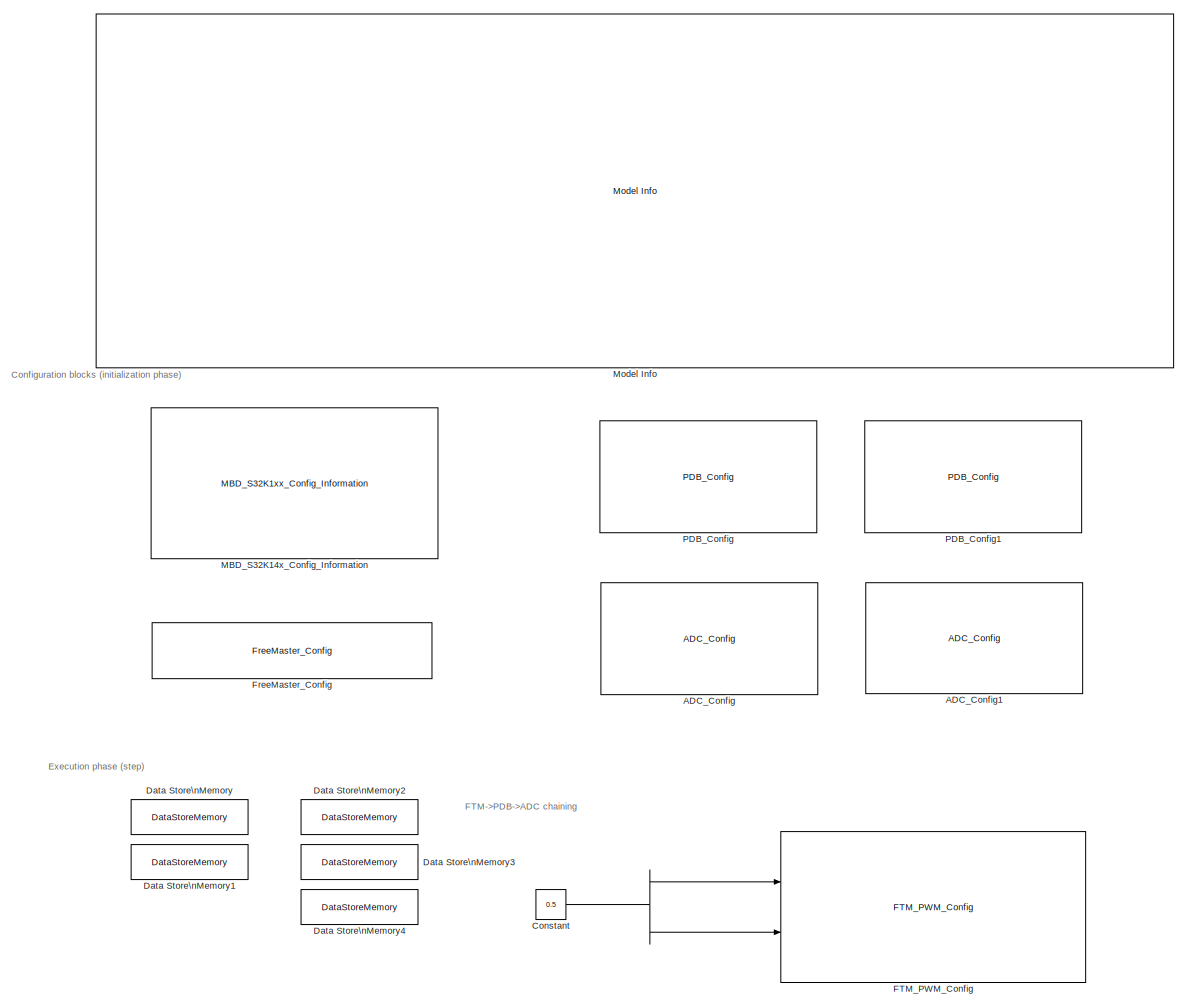
[diagram: root canvas - part 1/2, most of the canvas]
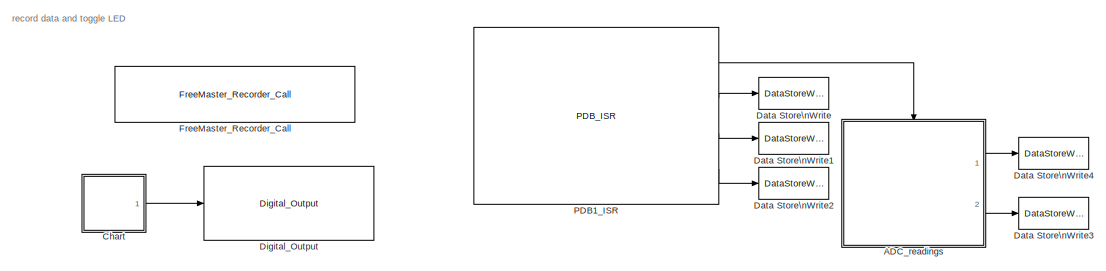
[diagram: root canvas - part 2/2, full width, bottom band]
MODEL ftm_pdb_adc_chaining_s32k14x
KIND model
CONFIG InitFcn = mbd_s32k_consistency_checks(bdroot(gcs));
BLOCK [Reference] ADC_Config  REF=mbd_s32k1xx_ec_toolbox/Motor Control Blocks/ADC Blocks/ADC_Config
  Ports = []
  Priority = 3
  SID = 2
  SourceBlock = mbd_s32k1xx_ec_toolbox/Motor Control Blocks/ADC Blocks/ADC_Config
  SourceType = adc_s32k_config_block
  acfe = off
  acfgt = off
  acren = off
  adco = off
  adiclk = alternate clock 1
  adiv = input clock
  adtrg = hardware
  avge = off
  avgs = 4 samples
  cv1 = 0
  cv2 = 0
  instance = 0
  mode = 12-bit conversion
  pretrgsel = PDB pre-trigger
  refsel = Vrefh and Vrefl
  show_adv_opts = on
  smplts = 13
  supply_monitoring = on
  swpretrg = Disabled
  trgsel = PDB output
BLOCK [Reference] ADC_Config1  REF=mbd_s32k1xx_ec_toolbox/Motor Control Blocks/ADC Blocks/ADC_Config
  Ports = []
  Priority = 4
  SID = 71
  SourceBlock = mbd_s32k1xx_ec_toolbox/Motor Control Blocks/ADC Blocks/ADC_Config
  SourceType = adc_s32k_config_block
  acfe = off
  acfgt = off
  acren = off
  adco = off
  adiclk = alternate clock 1
  adiv = input clock
  adtrg = hardware
  avge = off
  avgs = 4 samples
  cv1 = 0
  cv2 = 0
  instance = 1
  mode = 12-bit conversion
  pretrgsel = PDB pre-trigger
  refsel = Vrefh and Vrefl
  show_adv_opts = on
  smplts = 13
  supply_monitoring = off
  swpretrg = Disabled
  trgsel = PDB output
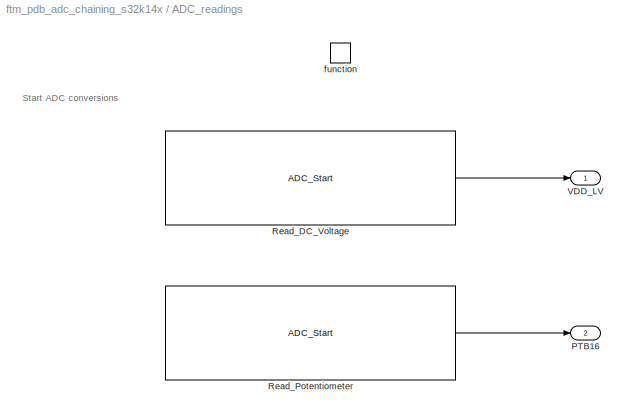
BLOCK [SubSystem] ADC_readings
  Ports = [0, 2, 0, 1]
  RTWSystemCode = Nonreusable function
  RequestExecContextInheritance = off
  SID = 51
  TreatAsAtomicUnit = on
  Variant = off
BLOCK [Outport] ADC_readings/PTB16
  IconDisplay = Port number
  Port = 2
  SID = 81
BLOCK [Reference] ADC_readings/Read_DC_Voltage  REF=mbd_s32k1xx_ec_toolbox/Motor Control Blocks/ADC Blocks/ADC_Start
  Ports = [0, 1]
  SID = 54
  SourceBlock = mbd_s32k1xx_ec_toolbox/Motor Control Blocks/ADC Blocks/ADC_Start
  SourceType = adc_s32k_start_block
  adc_chan = VDD LV
  adc_r = A
  aien = off
  instance = 0
  mcuTargetUpdate = on
BLOCK [Reference] ADC_readings/Read_Potentiometer  REF=mbd_s32k1xx_ec_toolbox/Motor Control Blocks/ADC Blocks/ADC_Start
  Ports = [0, 1]
  SID = 73
  SourceBlock = mbd_s32k1xx_ec_toolbox/Motor Control Blocks/ADC Blocks/ADC_Start
  SourceType = adc_s32k_start_block
  adc_chan = PTB16: [ADC1_SE15 | ADC Single Ended Input]
  adc_r = A
  aien = off
  instance = 1
  mcuTargetUpdate = on
BLOCK [Outport] ADC_readings/VDD_LV
  IconDisplay = Port number
  SID = 55
BLOCK [TriggerPort] ADC_readings/function
  Ports = []
  SID = 52
  StatesWhenEnabling = held
  TriggerType = function-call
  VariantControl = Variant
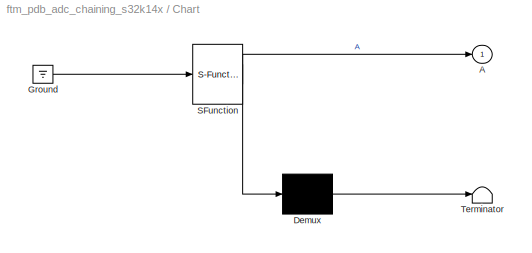
BLOCK [SubSystem] Chart
  ErrorFcn = Stateflow.Translate.translate
  PermitHierarchicalResolution = ExplicitOnly
  Ports = [0, 1]
  RequestExecContextInheritance = off
  SFBlockType = Chart
  SID = 12
  TreatAsAtomicUnit = on
  Variant = off
BLOCK [Outport] Chart/ A
  IconDisplay = Port number
  SID = 12::6
BLOCK [Demux] Chart/ Demux 
  Outputs = 1
  Ports = [1, 1]
  SID = 12::36
BLOCK [Ground] Chart/ Ground 
  SID = 12::38
BLOCK [S-Function] Chart/ SFunction 
  EnableBusSupport = off
  FunctionName = sf_sfun
  PortCounts = [1 2]
  Ports = [1, 2]
  SFcnIsStateOwnerBlock = off
  SFunctionDeploymentMode = off
  SID = 12::35
  Tag = Stateflow S-Function ftm_pdb_adc_chaining_s32k14x 3
BLOCK [Terminator] Chart/ Terminator 
  SID = 12::37
BLOCK [Constant] Constant
  OutDataTypeStr = Inherit: Inherit via back propagation
  SID = 49
  Value = 0.5
BLOCK [DataStoreMemory] Data Store\nMemory
  DataStoreName = PTB16
  OutDataTypeStr = uint32
  ReadBeforeWriteMsg = warning
  SID = 108
  ShowAdditionalParam = off
  WriteAfterReadMsg = warning
  WriteAfterWriteMsg = warning
BLOCK [DataStoreMemory] Data Store\nMemory1
  DataStoreName = VDD_LV
  OutDataTypeStr = uint32
  ReadBeforeWriteMsg = warning
  SID = 109
  ShowAdditionalParam = off
  WriteAfterReadMsg = warning
  WriteAfterWriteMsg = warning
BLOCK [DataStoreMemory] Data Store\nMemory2
  DataStoreName = PDBIF
  OutDataTypeStr = uint32
  ReadBeforeWriteMsg = warning
  SID = 110
  ShowAdditionalParam = off
  WriteAfterReadMsg = warning
  WriteAfterWriteMsg = warning
BLOCK [DataStoreMemory] Data Store\nMemory3
  DataStoreName = ERRCH0
  OutDataTypeStr = uint32
  ReadBeforeWriteMsg = warning
  SID = 111
  ShowAdditionalParam = off
  WriteAfterReadMsg = warning
  WriteAfterWriteMsg = warning
BLOCK [DataStoreMemory] Data Store\nMemory4
  DataStoreName = ERRCH1
  OutDataTypeStr = uint32
  ReadBeforeWriteMsg = warning
  SID = 112
  ShowAdditionalParam = off
  WriteAfterReadMsg = warning
  WriteAfterWriteMsg = warning
BLOCK [DataStoreWrite] Data Store\nWrite
  DataStoreName = PDBIF
  Ports = [1]
  SID = 113
BLOCK [DataStoreWrite] Data Store\nWrite1
  DataStoreName = ERRCH0
  Ports = [1]
  SID = 114
BLOCK [DataStoreWrite] Data Store\nWrite2
  DataStoreName = ERRCH1
  Ports = [1]
  SID = 115
BLOCK [DataStoreWrite] Data Store\nWrite3
  DataStoreName = PTB16
  Ports = [1]
  SID = 116
BLOCK [DataStoreWrite] Data Store\nWrite4
  DataStoreName = VDD_LV
  Ports = [1]
  SID = 117
BLOCK [Reference] Digital_Output  REF=mbd_s32k1xx_ec_toolbox/GPIO Blocks/Digital_Output
  Ports = [1]
  SID = 13
  SourceBlock = mbd_s32k1xx_ec_toolbox/GPIO Blocks/Digital_Output
  SourceType = gpio_s32k_output
  drive_strength = Low
  gpio_pin = PTD0: [PTD0 | Port D I/O]
  init_val = Low
BLOCK [Reference] FTM_PWM_Config  REF=mbd_s32k1xx_ec_toolbox/Motor Control Blocks/FTM Blocks/FTM_PWM_Config
  Ports = [2]
  SID = 118
  SourceBlock = mbd_s32k1xx_ec_toolbox/Motor Control Blocks/FTM Blocks/FTM_PWM_Config
  SourceType = FTM_s32k_pwm_config_block
  chTrigger0 = off
  chTrigger1 = off
  chTrigger2 = off
  chTrigger3 = off
  chTrigger4 = off
  chTrigger5 = off
  chTrigger6 = off
  chTrigger7 = off
  chan0En = on
  chan0Type = Independent
  chan2En = off
  chan2Type = Independent
  chan4En = off
  chan4Type = Independent
  chan6En = off
  chan6Type = Independent
  chnMatch0 = off
  chnMatch1 = off
  chnMatch2 = off
  chnMatch3 = off
  chnMatch4 = off
  chnMatch5 = off
  chnMatch6 = off
  chnMatch7 = off
  deadtimeNs = 0
  deadtimePrescaler = Divide by 1
  deadtimeTicks = 0
  deadtimeUnits = Nanoseconds
  dutyCycleCh0 = 0.5
  dutyCycleCh1 = 0.5
  dutyCycleCh2 = 0.25
  dutyCycleCh3 = 0.25
  dutyCycleCh4 = 0.25
  dutyCycleCh5 = 0.25
  dutyCycleCh6 = 0.25
  dutyCycleCh7 = 0.25
  dutyCycleSim = off
  fault_disen_0 = off
  fault_disen_1 = off
  fault_disen_2 = off
  fault_disen_3 = off
  fault_filter_0 = off
  fault_filter_1 = off
  fault_filter_2 = off
  fault_filter_3 = off
  fault_pin_0 = None
  fault_pin_1 = None
  fault_pin_2 = None
  fault_pin_3 = None
  fault_polarity_0 = Active High
  fault_polarity_1 = Active high
  fault_polarity_2 = Active high
  fault_polarity_3 = Active high
  ftmMode = Center-Aligned PWM
  ftmModule = 3
  ftmPeriod = 8000
  ftmPrescaler = Divide by 1
  ftmPwmUnits = Hz
  ftmSourceClock = 80 MHz
  initTrigger = on
  mcuTargetUpdate = on
  outFrequency = 10000
  outputComplem0 = Main duplicated
  outputComplem2 = Main duplicated
  outputComplem4 = Main duplicated
  outputComplem6 = Main duplicated
  outputLevel0 = Low
  outputLevel1 = Low
  outputLevel2 = Low
  outputLevel3 = Low
  outputLevel4 = Low
  outputLevel5 = Low
  outputLevel6 = Low
  outputLevel7 = Low
  pinFtmCh0 = PTA2: [FTM3_CH0 | FTM Channel]
  pinFtmCh1 = PTA3: [FTM3_CH1 | FTM Channel]
  pinFtmCh2 = PTB10: [FTM3_CH2 | FTM Channel]
  pinFtmCh3 = None
  pinFtmCh4 = PTC10: [FTM3_CH4 | FTM Channel]
  pinFtmCh5 = None
  pinFtmCh6 = PTC12: [FTM3_CH6 | FTM Channel]
  pinFtmCh7 = None
  pinPolCh0 = Active High
  pinPolCh1 = Active Low
  pinPolCh2 = Active Low
  pinPolCh3 = Active Low
  pinPolCh4 = Active Low
  pinPolCh5 = Active Low
  pinPolCh6 = Active Low
  pinPolCh7 = Active Low
  pwmFaultClearing = Fault control disabled
  pwmFaultFilterValue = 0
  pwmFaultInterrupt = off
  pwmFaultPinState = Safe Value
  pwmFaultPriority = 15
  pwmFaultProtection = off
  pwmSyncAutoClear = on
  pwmSyncCounterInitial = System Clock
  pwmSyncHwRouting = TRGMUX_FTM7
  pwmSyncInvert = System Clock
  pwmSyncMaxLoad = on
  pwmSyncMinLoad = on
  pwmSyncOutControl = System Clock
  pwmSyncOutMask = System Clock
  pwmSyncPoints = Update now
  pwmSyncTrg = Software trigger
  pwmSyncTrg0 = off
  pwmSyncTrg1 = off
  pwmSyncTrg2 = off
  reloadEnable = off
  reloadFrequency = 0
  reloadHCR = 0
  reloadHalfCycle = off
  reloadPriority = 15
  showAdvOpt = on
  startAfterInit = on
  swcontrol_enable = off
BLOCK [Reference] FreeMaster_Config  REF=mbd_s32k1xx_ec_toolbox/Utility Blocks/FreeMaster_Config
  Ports = []
  SID = 43
  SourceBlock = mbd_s32k1xx_ec_toolbox/Utility Blocks/FreeMaster_Config
  SourceType = fm_s32k_config
  baudrate = 115200
  comm_buffer_size = 255
  comm_buffer_size_auto = on
  comm_rqueue_size = 32
  comm_rqueue_size_default = on
  interface = LPUART1
  isr_prio = 10
  max_rec_vars = 8
  max_scope_vars = 8
  mode = Short Interrupt
  rec_buff_size = 1024
  rec_timebase = 100
  rec_timebase_unit = milliseconds
  rxd = PTC6: [LPUART1_RX | Receive]
  show_adv_opts = on
  txd = PTC7: [LPUART1_TX | Transmit]
  use_recorder = on
  use_scope = on
BLOCK [Reference] FreeMaster_Recorder_Call  REF=mbd_s32k1xx_ec_toolbox/Utility Blocks/FreeMaster_Recorder_Call
  Ports = []
  SID = 119
  SourceBlock = mbd_s32k1xx_ec_toolbox/Utility Blocks/FreeMaster_Recorder_Call
  SourceType = fm_s32k_recorder_call
BLOCK [Reference] MBD_S32K14x_Config_Information  REF=mbd_s32k1xx_ec_toolbox/MBD_S32K1xx_Config_Information
  ADC_PcrCheckEnDis = on
  AMMCLIB_PcrCheckEnDis = on
  CMP_PcrCheckEnDis = on
  CSEc_PcrCheckEnDis = on
  ConfigParams_PcrCheckEnDis = on
  FM_PcrCheckEnDis = on
  FTM_Dual_Edge_Inputs_PcrCheckEnDis = on
  FTM_Hall_Sensor_Inputs_PcrCheckEnDis = on
  FTM_Input_Edge_Inputs_PcrCheckEnDis = on
  FTM_PWM_PcrCheckEnDis = on
  FTM_Quadrature_Inputs_PcrCheckEnDis = on
  FlexCAN_PcrCheckEnDis = on
  FlexIO_PcrCheckEnDis = on
  GPIO_InputPcrCheckEnDis = on
  GPIO_OutputPcrCheckEnDis = on
  LIN_PcrCheckEnDis = on
  LPI2C_PcrCheckEnDis = on
  LPSPI_PcrCheckEnDis = on
  LPTMR_PcrCheckEnDis = on
  LPUART_PcrCheckEnDis = on
  ModelRef_PcrCheckEnDis = on
  PDB0_PcrCheckEnDis = on
  PIT_PcrCheckEnDis = on
  Ports = []
  Priority = 0
  Profile_PcrCheckEnDis = on
  RTC_PcrCheckEnDis = on
  SBC_PcrCheckEnDis = on
  SID = 1
  SourceBlock = mbd_s32k1xx_ec_toolbox/MBD_S32K1xx_Config_Information
  SourceType = MBDTBX_EC_S32K
  WDOG_PcrCheckEnDis = on
  config_params = []
  disp_str = Target : S32K144-64KB_SRAM\nPackage : 100-pin\nSystem clock : 80 MHz\nXTAL clock : External 8 MHz\nCompiler : GCC\nTarget Type : FLASH\nDownload Code after build : (OpenSDA: D)\nStep Tick Interrupt Priority : 15
  ds_import_enable = on
  eDMA_PcrCheckEnDis = on
  gcc_target_assemble_opts = -mcpu=cortex-m4 -mthumb -mfloat-abi=hard -mfpu=fpv4-sp-d16 -g
  gcc_target_compile_opts = -mcpu=cortex-m4 -mthumb -mfloat-abi=hard -mfpu=fpv4-sp-d16 -O1 -g -gstrict-dwarf
  gcc_target_default_lcf = on
  gcc_target_link_opts = -mcpu=cortex-m4 -mthumb -mfloat-abi=hard -mfpu=fpv4-sp-d16
  gcc_target_user_lcf = S32K144_64_flash.ld
  ghs_target_assemble_opts = -cpu=cortexm4f -fpu=vfpv4_d16
  ghs_target_compile_opts = -cpu=cortexm4f -thumb -DARM_MATH_CM4 -fpu=vfpv4_d16 -fsingle -Ogeneral -Wundef -Wimplicit-int -Wshadow -Wtrigraphs --no_commons --gnu_asm -gnu99 -gdwarf-2 -G
  ghs_target_default_lcf = off
  ghs_target_link_opts = -cpu=cortexm4f -thumb -fpu=vfpv4_d16
  ghs_target_user_lcf = S32K144_64_flash.ld
  iar_target_assemble_opts = --cpu Cortex-M4F --thumb --fpu VFPv4_sp
  iar_target_compile_opts = --cpu=Cortex-M4F --thumb --fpu=VFPv4_sp -Ol -e --debug --dlib_config normal
  iar_target_default_lcf = off
  iar_target_link_opts = --no_exceptions --vfe --inline
  iar_target_user_lcf = S32K144_64_flash.icf
  mbdt_ver = 0
  mcu_steptick_prio = 15
  mcu_steptick_timer = LPIT Channel 0
  mcu_system_clock_freq = 80
  mcu_target_name = S32K144
  mcu_target_package = 100-LQFP
  mcu_target_sram_size = 64KB
  mcu_xtal_freq = External 8
  pil_download_enable = off
  pil_download_rate = 57600
  pil_opensda_drive = Custom
  pil_opensda_drive_custom = D
  pil_uart_instance = 0
  pil_uart_rx = PTA2: [LPUART0_RX | Receive]
  pil_uart_tx = PTA3: [LPUART0_TX | Transmit]
  rbl_com_port = Custom
  rbl_com_port_custom = COM1
  rbl_download_enable = on
  rbl_download_interface = OpenSDA
  rbl_restart_request = off
  rbl_start_delay = 5000000
  target_compiler = GCC
  target_memory = FLASH
BLOCK [Reference] Model Info  REF=simulink/Model-Wide\nUtilities/Model Info
  DisplayStringWithTags = Model Name: %<ModelName>\n\nDescription: %<Description>
  Frame = on
  HorizontalTextAlignment = Left
  LeftAlignmentValue = 0.02
  MaskDisplayString = Model Name: ftm_pdb_adc_chaining_s32k14x\\n\\nDescription: FTM->PDB->ADC chaining:\\n\\nThis example shows how to synchronize ADC0 and ADC1 measurements with the PWM commands issued by FTM via Programmable Delay Block (PDB0 and PDB1).\\n\\nThe FTM->PDB0/1->ADC0/1 chain works like this:\\nThe INIT_TRIG event (FTM initialization trigger) is raised at the beginning of a new PWM period (when the PWM c...<+902ch>
  Ports = []
  SID = 106
  SourceBlock = simulink/Model-Wide\nUtilities/Model Info
  SourceProductBaseCode = SL
  SourceProductName = Simulink
  SourceType = CMBlock
BLOCK [Reference] PDB1_ISR  REF=mbd_s32k1xx_ec_toolbox/Motor Control Blocks/PDB Blocks/PDB_ISR
  Ports = [0, 4]
  Priority = 8
  SID = 88
  SourceBlock = mbd_s32k1xx_ec_toolbox/Motor Control Blocks/PDB Blocks/PDB_ISR
  SourceType = pdb_s32k_isr_block
  pdbModule = 1
  prioInterrupt = 1
  regIdlyIdly = 0
  regScPdbeie = on
  regScPdbie = on
BLOCK [Reference] PDB_Config  REF=mbd_s32k1xx_ec_toolbox/Motor Control Blocks/PDB Blocks/PDB_Config
  Ports = []
  Priority = 1
  SID = 62
  SourceBlock = mbd_s32k1xx_ec_toolbox/Motor Control Blocks/PDB Blocks/PDB_Config
  SourceType = pdb_s32k_config_block
  enable_pdb_init = on
  pdbModule = 0
  regCh0C1Bb0 = off
  regCh0C1Bb1 = off
  regCh0C1Bb2 = off
  regCh0C1Bb3 = off
  regCh0C1Bb4 = off
  regCh0C1Bb5 = off
  regCh0C1Bb6 = off
  regCh0C1Bb7 = off
  regCh0C1En0 = on
  regCh0C1En1 = off
  regCh0C1En2 = off
  regCh0C1En3 = off
  regCh0C1En4 = off
  regCh0C1En5 = off
  regCh0C1En6 = off
  regCh0C1En7 = off
  regCh0C1Tos0 = Pre-trigger is in delay mode
  regCh0C1Tos1 = Pre-trigger is in delay mode
  regCh0C1Tos2 = Pre-trigger is in delay mode
  regCh0C1Tos3 = Pre-trigger is in delay mode
  regCh0C1Tos4 = Pre-trigger is in delay mode
  regCh0C1Tos5 = Pre-trigger is in delay mode
  regCh0C1Tos6 = Pre-trigger is in delay mode
  regCh0C1Tos7 = Pre-trigger is in delay mode
  regCh0DlyDly0 = 0
  regCh0DlyDly1 = 500
  regCh0DlyDly2 = 0
  regCh0DlyDly3 = 0
  regCh0DlyDly4 = 0
  regCh0DlyDly5 = 0
  regCh0DlyDly6 = 0
  regCh0DlyDly7 = 0
  regCh1C1Bb0 = off
  regCh1C1Bb1 = off
  regCh1C1Bb2 = off
  regCh1C1Bb3 = off
  regCh1C1Bb4 = off
  regCh1C1Bb5 = off
  regCh1C1Bb6 = off
  regCh1C1Bb7 = off
  regCh1C1En0 = off
  regCh1C1En1 = off
  regCh1C1En2 = off
  regCh1C1En3 = off
  regCh1C1En4 = off
  regCh1C1En5 = off
  regCh1C1En6 = off
  regCh1C1En7 = off
  regCh1C1Tos0 = Pre-trigger is in delay mode
  regCh1C1Tos1 = Pre-trigger is in delay mode
  regCh1C1Tos2 = Pre-trigger is in delay mode
  regCh1C1Tos3 = Pre-trigger is in delay mode
  regCh1C1Tos4 = Pre-trigger is in delay mode
  regCh1C1Tos5 = Pre-trigger is in delay mode
  regCh1C1Tos6 = Pre-trigger is in delay mode
  regCh1C1Tos7 = Pre-trigger is in delay mode
  regCh1DlyDly0 = 0
  regCh1DlyDly1 = 0
  regCh1DlyDly2 = 0
  regCh1DlyDly3 = 0
  regCh1DlyDly4 = 0
  regCh1DlyDly5 = 0
  regCh1DlyDly6 = 0
  regCh1DlyDly7 = 0
  regModModulus = 8000
  regPo0DlyDly1 = 0
  regPo0DlyDly2 = 0
  regPoenPoen0 = off
  regScCont = One-Shot
  regScMult = 1
  regScPrescaler = 1
  regScTrgsel = External (TRGMUX_PDB_TRIG)
  show_adv_opts = on
  trgMuxSel = FTM3 Initialize Trigger
  trgMuxSelPin = PTB5: [TRGMUX_IN0 | Trigger Mux Input]
BLOCK [Reference] PDB_Config1  REF=mbd_s32k1xx_ec_toolbox/Motor Control Blocks/PDB Blocks/PDB_Config
  Ports = []
  Priority = 2
  SID = 72
  SourceBlock = mbd_s32k1xx_ec_toolbox/Motor Control Blocks/PDB Blocks/PDB_Config
  SourceType = pdb_s32k_config_block
  enable_pdb_init = on
  pdbModule = 1
  regCh0C1Bb0 = off
  regCh0C1Bb1 = off
  regCh0C1Bb2 = off
  regCh0C1Bb3 = off
  regCh0C1Bb4 = off
  regCh0C1Bb5 = off
  regCh0C1Bb6 = off
  regCh0C1Bb7 = off
  regCh0C1En0 = on
  regCh0C1En1 = off
  regCh0C1En2 = off
  regCh0C1En3 = off
  regCh0C1En4 = off
  regCh0C1En5 = off
  regCh0C1En6 = off
  regCh0C1En7 = off
  regCh0C1Tos0 = Pre-trigger is in delay mode
  regCh0C1Tos1 = Pre-trigger is in delay mode
  regCh0C1Tos2 = Pre-trigger is in delay mode
  regCh0C1Tos3 = Pre-trigger is in delay mode
  regCh0C1Tos4 = Pre-trigger is in delay mode
  regCh0C1Tos5 = Pre-trigger is in delay mode
  regCh0C1Tos6 = Pre-trigger is in delay mode
  regCh0C1Tos7 = Pre-trigger is in delay mode
  regCh0DlyDly0 = 0
  regCh0DlyDly1 = 500
  regCh0DlyDly2 = 0
  regCh0DlyDly3 = 0
  regCh0DlyDly4 = 0
  regCh0DlyDly5 = 0
  regCh0DlyDly6 = 0
  regCh0DlyDly7 = 0
  regCh1C1Bb0 = off
  regCh1C1Bb1 = off
  regCh1C1Bb2 = off
  regCh1C1Bb3 = off
  regCh1C1Bb4 = off
  regCh1C1Bb5 = off
  regCh1C1Bb6 = off
  regCh1C1Bb7 = off
  regCh1C1En0 = off
  regCh1C1En1 = off
  regCh1C1En2 = off
  regCh1C1En3 = off
  regCh1C1En4 = off
  regCh1C1En5 = off
  regCh1C1En6 = off
  regCh1C1En7 = off
  regCh1C1Tos0 = Pre-trigger is in delay mode
  regCh1C1Tos1 = Pre-trigger is in delay mode
  regCh1C1Tos2 = Pre-trigger is in delay mode
  regCh1C1Tos3 = Pre-trigger is in delay mode
  regCh1C1Tos4 = Pre-trigger is in delay mode
  regCh1C1Tos5 = Pre-trigger is in delay mode
  regCh1C1Tos6 = Pre-trigger is in delay mode
  regCh1C1Tos7 = Pre-trigger is in delay mode
  regCh1DlyDly0 = 0
  regCh1DlyDly1 = 0
  regCh1DlyDly2 = 0
  regCh1DlyDly3 = 0
  regCh1DlyDly4 = 0
  regCh1DlyDly5 = 0
  regCh1DlyDly6 = 0
  regCh1DlyDly7 = 0
  regModModulus = 8000
  regPo0DlyDly1 = 0
  regPo0DlyDly2 = 0
  regPoenPoen0 = off
  regScCont = One-Shot
  regScMult = 1
  regScPrescaler = 1
  regScTrgsel = External (TRGMUX_PDB_TRIG)
  show_adv_opts = on
  trgMuxSel = FTM3 Initialize Trigger
  trgMuxSelPin = PTB5: [TRGMUX_IN0 | Trigger Mux Input]
ANNOTATION (root): Configuration blocks (initialization phase)
ANNOTATION (root): Execution phase (step)
ANNOTATION (root): FTM->PDB->ADC chaining
ANNOTATION (root): record data and toggle LED
ANNOTATION ADC_readings: Start ADC conversions
LINE ADC_readings/Read_DC_Voltage:1 -> ADC_readings/VDD_LV:1
LINE ADC_readings/Read_Potentiometer:1 -> ADC_readings/PTB16:1
LINE ADC_readings:1 -> Data Store\nWrite4:1
LINE ADC_readings:2 -> Data Store\nWrite3:1
LINE Chart/ Demux :1 -> Chart/ Terminator :1
LINE Chart/ Ground :1 -> Chart/ SFunction :1
LINE Chart/ SFunction :1 -> Chart/ Demux :1
LINE Chart/ SFunction :2 -> Chart/ A:1
LINE Chart:1 -> Digital_Output:1
NET Constant:1 -> FTM_PWM_Config:1, FTM_PWM_Config:2
LINE PDB1_ISR:1 -> ADC_readings:trigger
LINE PDB1_ISR:2 -> Data Store\nWrite:1
LINE PDB1_ISR:3 -> Data Store\nWrite1:1
LINE PDB1_ISR:4 -> Data Store\nWrite2:1
note: NET lines group one-source signal fan-out (src -> all destinations, sorted); 1:1 wires keep LINE
CHART Chart states=2 transitions=3
  STATE_LABEL 'A'
  STATE_LABEL 'A1'
